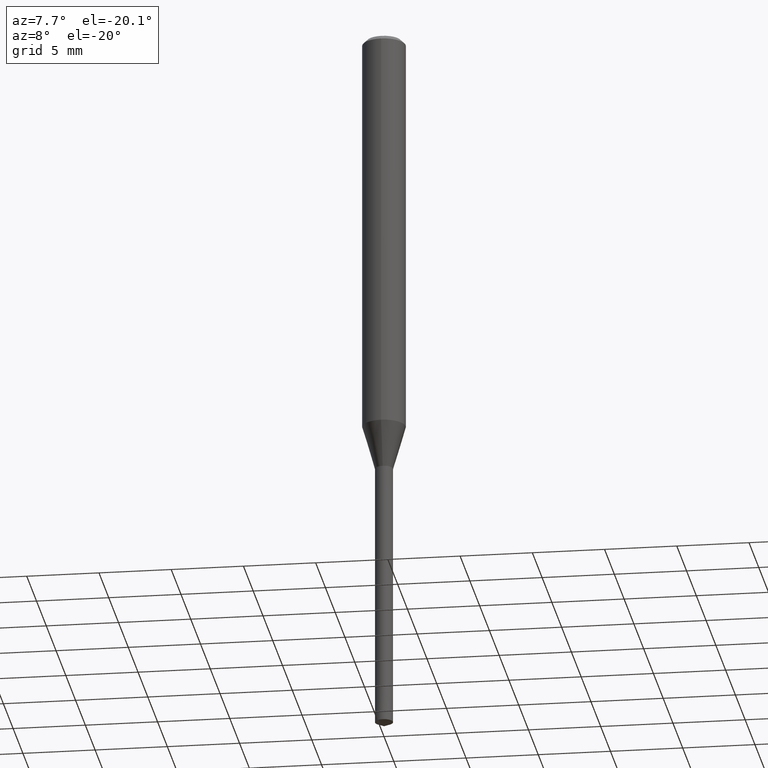
[diagram: clean part render]
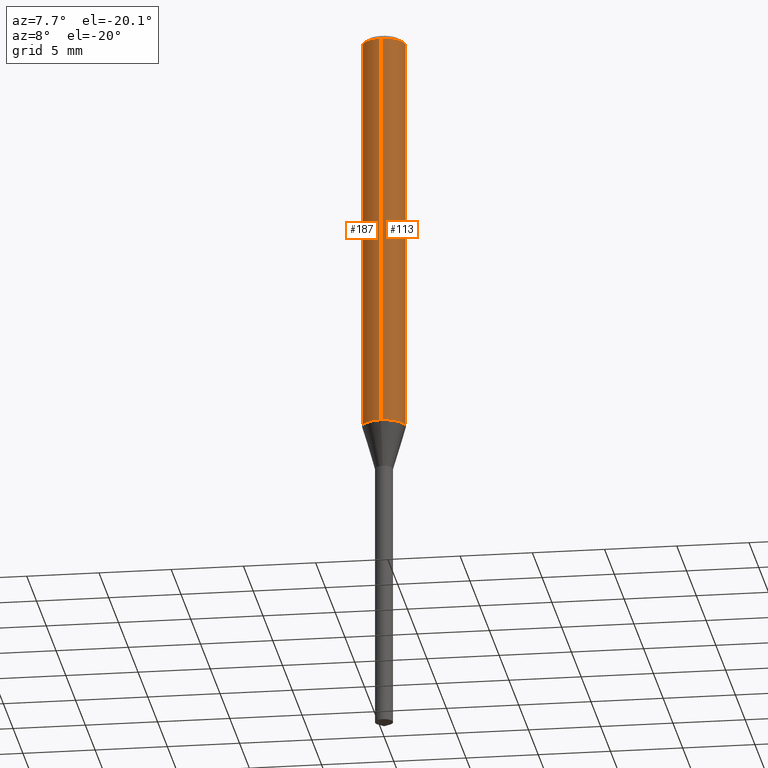
[diagram: same view with one multi-face feature highlighted, each face labeled with its STEP entity id]
A machine part, auxiliary view. The highlighted faces form ONE feature: a constant-radius fillet chain: 2 tangent blend faces with common blend radius 1.5 mm. The faces share edges in the B-rep.
Their STEP definitions:
[1] entity #113 (Cylinder):
#113=ADVANCED_FACE('',(#252),#253,.T.);
#115=VERTEX_POINT('',#255);
#117=EDGE_CURVE('',#115,#193,#257,.T.);
#119=VERTEX_POINT('',#259);
#121=EDGE_CURVE('',#203,#115,#261,.T.);
#183=EDGE_CURVE('',#203,#119,#331,.T.);
#185=EDGE_CURVE('',#193,#119,#333,.T.);
#193=VERTEX_POINT('',#342);
#203=VERTEX_POINT('',#353);
#252=FACE_OUTER_BOUND('',#400,.T.);
#253=CYLINDRICAL_SURFACE('',#401,1.5);
#255=CARTESIAN_POINT('',(0.0,1.5,-28.149));
#257=CIRCLE('',#406,1.5);
#259=CARTESIAN_POINT('',(1.83690953073357E-016,-1.5,-0.300000000000001));
#261=LINE('',#411,#412);
#331=CIRCLE('',#500,1.5);
#333=LINE('',#503,#504);
#342=CARTESIAN_POINT('',(1.83690953073357E-016,-1.5,-28.149));
#353=CARTESIAN_POINT('',(0.0,1.5,-0.300000000000001));
#400=EDGE_LOOP('',(#574,#575,#576,#577));
#401=AXIS2_PLACEMENT_3D('',#578,#579,#580);
#406=AXIS2_PLACEMENT_3D('',#581,#582,#583);
#411=CARTESIAN_POINT('',(-1.83690953073357E-016,1.5,-14.2245));
#412=VECTOR('',#584,1.0);
#500=AXIS2_PLACEMENT_3D('',#677,#678,#679);
#503=CARTESIAN_POINT('',(1.83690953073357E-016,-1.5,-14.2245));
#504=VECTOR('',#680,1.0);
#574=ORIENTED_EDGE('',*,*,#121,.F.);
#575=ORIENTED_EDGE('',*,*,#183,.T.);
#576=ORIENTED_EDGE('',*,*,#185,.F.);
#577=ORIENTED_EDGE('',*,*,#117,.F.);
#578=CARTESIAN_POINT('',(0.0,0.0,-14.2245));
#579=DIRECTION('',(-0.0,-0.0,1.0));
#580=DIRECTION('',(0.0,1.0,0.0));
#581=CARTESIAN_POINT('',(0.0,0.0,-28.149));
#582=DIRECTION('',(0.0,0.0,-1.0));
#583=DIRECTION('',(0.0,1.0,0.0));
#584=DIRECTION('',(0.0,0.0,-1.0));
#677=CARTESIAN_POINT('',(0.0,0.0,-0.300000000000001));
#678=DIRECTION('',(0.0,0.0,-1.0));
#679=DIRECTION('',(0.0,1.0,0.0));
#680=DIRECTION('',(-0.0,-0.0,1.0));
[2] entity #187 (Cylinder):
#115=VERTEX_POINT('',#255);
#119=VERTEX_POINT('',#259);
#121=EDGE_CURVE('',#203,#115,#261,.T.);
#139=EDGE_CURVE('',#119,#203,#280,.T.);
#157=EDGE_CURVE('',#193,#115,#300,.T.);
#185=EDGE_CURVE('',#193,#119,#333,.T.);
#187=ADVANCED_FACE('',(#335),#336,.T.);
#193=VERTEX_POINT('',#342);
#203=VERTEX_POINT('',#353);
#255=CARTESIAN_POINT('',(0.0,1.5,-28.149));
#259=CARTESIAN_POINT('',(1.83690953073357E-016,-1.5,-0.300000000000001));
#261=LINE('',#411,#412);
#280=CIRCLE('',#437,1.5);
#300=CIRCLE('',#463,1.5);
#333=LINE('',#503,#504);
#335=FACE_OUTER_BOUND('',#506,.T.);
#336=CYLINDRICAL_SURFACE('',#507,1.5);
#342=CARTESIAN_POINT('',(1.83690953073357E-016,-1.5,-28.149));
#353=CARTESIAN_POINT('',(0.0,1.5,-0.300000000000001));
#411=CARTESIAN_POINT('',(-1.83690953073357E-016,1.5,-14.2245));
#412=VECTOR('',#584,1.0);
#437=AXIS2_PLACEMENT_3D('',#601,#602,#603);
#463=AXIS2_PLACEMENT_3D('',#628,#629,#630);
#503=CARTESIAN_POINT('',(1.83690953073357E-016,-1.5,-14.2245));
#504=VECTOR('',#680,1.0);
#506=EDGE_LOOP('',(#682,#683,#684,#685));
#507=AXIS2_PLACEMENT_3D('',#686,#687,#688);
#584=DIRECTION('',(0.0,0.0,-1.0));
#601=CARTESIAN_POINT('',(0.0,0.0,-0.300000000000001));
#602=DIRECTION('',(0.0,0.0,-1.0));
#603=DIRECTION('',(0.0,1.0,0.0));
#628=CARTESIAN_POINT('',(0.0,0.0,-28.149));
#629=DIRECTION('',(0.0,0.0,-1.0));
#630=DIRECTION('',(0.0,1.0,0.0));
#680=DIRECTION('',(-0.0,-0.0,1.0));
#682=ORIENTED_EDGE('',*,*,#121,.T.);
#683=ORIENTED_EDGE('',*,*,#157,.F.);
#684=ORIENTED_EDGE('',*,*,#185,.T.);
#685=ORIENTED_EDGE('',*,*,#139,.T.);
#686=CARTESIAN_POINT('',(0.0,0.0,-14.2245));
#687=DIRECTION('',(-0.0,-0.0,1.0));
#688=DIRECTION('',(0.0,1.0,0.0));